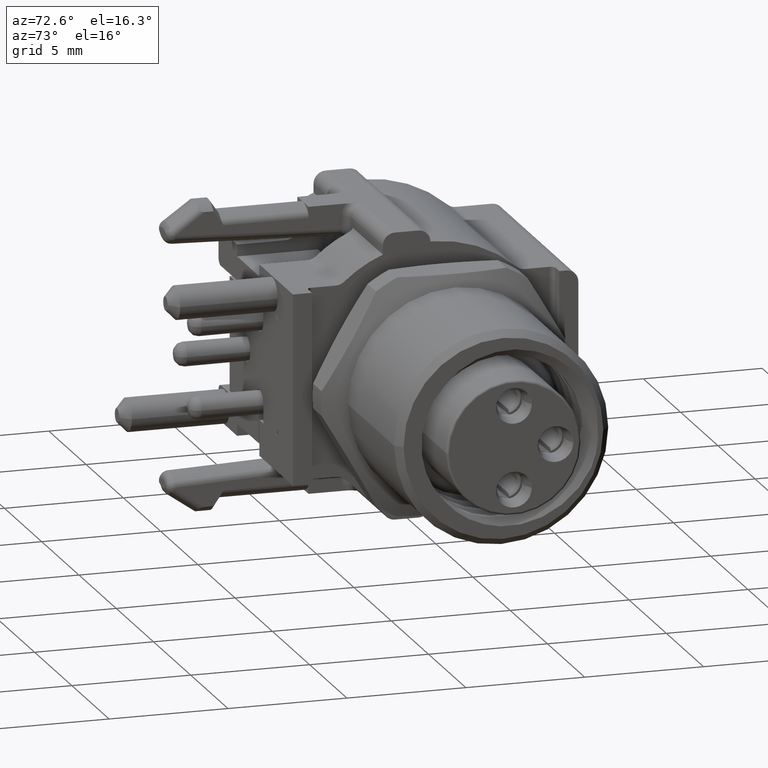
[diagram: clean part render]
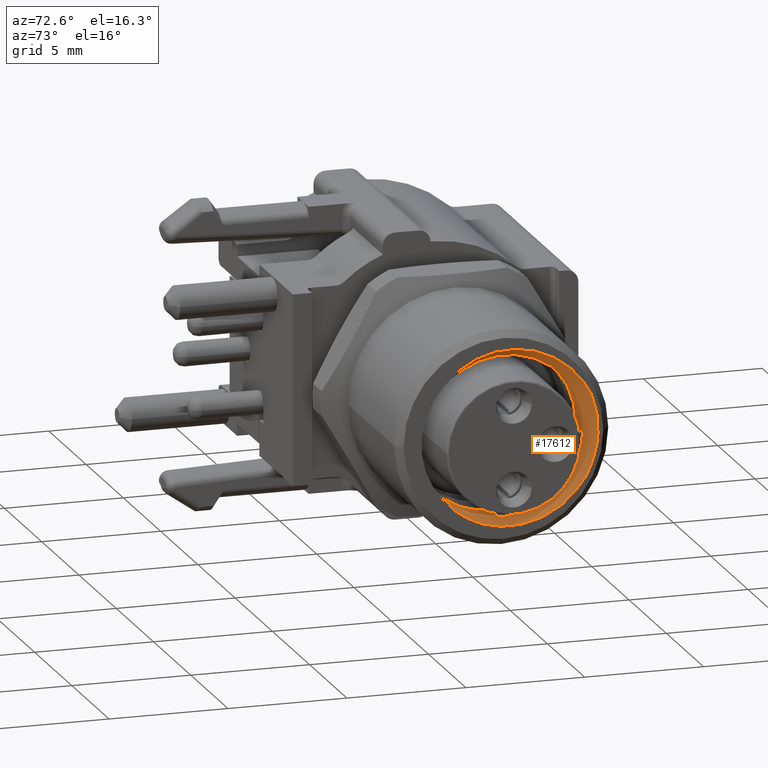
[diagram: same view with one face highlighted and labeled with its STEP entity id]
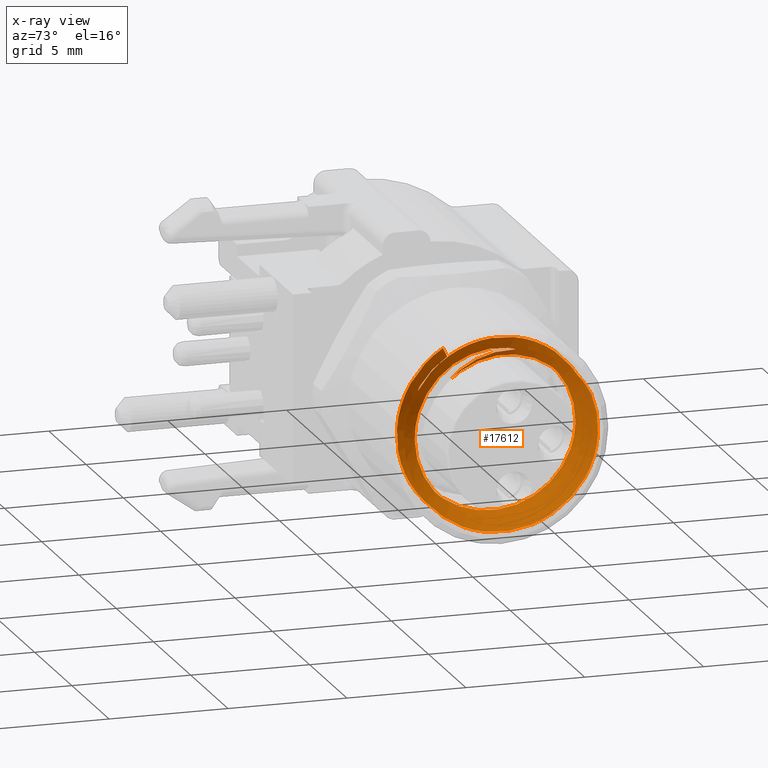
[diagram: x-ray of the same camera — body ghosted, the highlighted face saturated]
A machine part, auxiliary view. The second image highlights one B-rep face of the part: STEP entity #17612.
The next image is the same camera in x-ray: the body ghosted, the highlighted face saturated — about 0% of this face is hidden behind the body in this view.
In plain terms, the highlighted face is a freeform B-spline surface patch.
Its self-contained STEP definition (entity closure, byte-faithful):
#420=CARTESIAN_POINT('',(2.901902898612E-1,-7.873792157928E-2,
1.363832271779E-1));
#2312=CARTESIAN_POINT('',(3.582677165354E-1,-9.628549667288E-2,
9.628885492937E-2));
#2313=CARTESIAN_POINT('',(3.582677165354E-1,-9.335646168398E-2,
9.973104853174E-2));
#2314=CARTESIAN_POINT('',(3.582677165354E-1,-8.714770019653E-2,
1.063155538983E-1));
#2315=CARTESIAN_POINT('',(3.582677165354E-1,-7.673052463236E-2,
1.153721922043E-1));
#2316=CARTESIAN_POINT('',(3.582677165354E-1,-6.538318189849E-2,
1.233854435632E-1));
#2317=CARTESIAN_POINT('',(3.582677165354E-1,-5.322603190747E-2,
1.302635108978E-1));
#2318=CARTESIAN_POINT('',(3.582677165354E-1,-4.037845984877E-2,
1.359239822645E-1));
#2319=CARTESIAN_POINT('',(3.582677165354E-1,-2.695002373268E-2,
1.403055079545E-1));
#2320=CARTESIAN_POINT('',(3.582677165354E-1,-1.306804279630E-2,
1.433496320949E-1));
#2321=CARTESIAN_POINT('',(3.582677165354E-1,1.117849307072E-3,
1.450106536806E-1));
#2322=CARTESIAN_POINT('',(3.582677165354E-1,1.547825392502E-2,
1.452622318077E-1));
#2323=CARTESIAN_POINT('',(3.582677165354E-1,2.988155475938E-2,
1.440867318188E-1));
#2324=CARTESIAN_POINT('',(3.582677165354E-1,4.416826174331E-2,
1.414839981091E-1));
#2325=CARTESIAN_POINT('',(3.582677165354E-1,5.820438189211E-2,
1.374673462904E-1));
#2326=CARTESIAN_POINT('',(3.582677165354E-1,7.185379645785E-2,
1.320616248558E-1));
#2327=CARTESIAN_POINT('',(3.582677165354E-1,8.497567794215E-2,
1.253085235424E-1));
#2328=CARTESIAN_POINT('',(3.582677165354E-1,9.743639734452E-2,
1.172634660471E-1));
#2329=CARTESIAN_POINT('',(3.582677165354E-1,1.091121644049E-1,
1.079921880593E-1));
#2330=CARTESIAN_POINT('',(3.582677165354E-1,1.198840135461E-1,
9.757259309635E-2));
#2331=CARTESIAN_POINT('',(3.582677165354E-1,1.296392604606E-1,
8.609824294709E-2));
#2332=CARTESIAN_POINT('',(3.582677165354E-1,1.382824224945E-1,
7.365661226221E-2));
#2333=CARTESIAN_POINT('',(3.582677165354E-1,1.432252543499E-1,
6.482441370457E-2));
#2334=CARTESIAN_POINT('',(3.582677165354E-1,1.454938218841E-1,
6.026269777939E-2));
#2691=DIRECTION('',(-4.999998858543E-1,4.329976155465E-1,-7.500087859997E-1));
#2692=VECTOR('',#2691,2.461692365926E-2);
#2693=CARTESIAN_POINT('',(2.901902898612E-1,-7.873792157928E-2,
1.363832271779E-1));
#2694=LINE('',#2693,#2692);
#2695=CARTESIAN_POINT('',(2.901902898612E-1,-7.873792157928E-2,
1.363832271779E-1));
#2696=CARTESIAN_POINT('',(2.903966399602E-1,-8.322929567072E-2,
1.337902289896E-1));
#2697=CARTESIAN_POINT('',(2.908093096770E-1,-9.195483902566E-2,
1.281603452079E-1));
#2698=CARTESIAN_POINT('',(2.914278825164E-1,-1.041386533408E-1,
1.184734177871E-1));
#2699=CARTESIAN_POINT('',(2.920470444950E-1,-1.153186201265E-1,
1.076220746493E-1));
#2700=CARTESIAN_POINT('',(2.926659125675E-1,-1.253684587009E-1,
9.572612249592E-2));
#2701=CARTESIAN_POINT('',(2.932845241896E-1,-1.341935732041E-1,
8.290312046370E-2));
#2702=CARTESIAN_POINT('',(2.939037640676E-1,-1.417185826379E-1,
6.925838884729E-2));
#2703=CARTESIAN_POINT('',(2.945225076980E-1,-1.478556972868E-1,
5.494925762315E-2));
#2704=CARTESIAN_POINT('',(2.951411944481E-1,-1.525527479596E-1,
4.010646249449E-2));
#2705=CARTESIAN_POINT('',(2.957604513111E-1,-1.557655486203E-1,
2.485865243309E-2));
#2706=CARTESIAN_POINT('',(2.963791020819E-1,-1.574569225565E-1,
9.383448767509E-3));
#2707=CARTESIAN_POINT('',(2.969978950718E-1,-1.576153966822E-1,
-6.186682072065E-3));
#2708=CARTESIAN_POINT('',(2.976171094177E-1,-1.562358267798E-1,
-2.170703060020E-2));
#2709=CARTESIAN_POINT('',(2.982356984961E-1,-1.533353665859E-1,
-3.700022241780E-2));
#2710=CARTESIAN_POINT('',(2.988546290868E-1,-1.489395534277E-1,
-5.194139916229E-2));
#2711=CARTESIAN_POINT('',(2.994737408316E-1,-1.430890506271E-1,
-6.638008124547E-2));
#2712=CARTESIAN_POINT('',(3.000923014630E-1,-1.358501175644E-1,
-8.015941430797E-2));
#2713=CARTESIAN_POINT('',(3.007113932840E-1,-1.272807849623E-1,
-9.316921212081E-2));
#2714=CARTESIAN_POINT('',(3.013303461889E-1,-1.174716306699E-1,
-1.052671423575E-1));
#2715=CARTESIAN_POINT('',(3.019489289729E-1,-1.065245534403E-1,
-1.163328987458E-1));
#2716=CARTESIAN_POINT('',(3.025681323924E-1,-9.452760419795E-2,
-1.262751854430E-1));
#2717=CARTESIAN_POINT('',(3.031869431056E-1,-8.161635377681E-2,
-1.349796435149E-1));
#2718=CARTESIAN_POINT('',(3.038055831582E-1,-6.791407655376E-2,
-1.423675986032E-1));
#2719=CARTESIAN_POINT('',(3.044248375914E-1,-5.353560789332E-2,
-1.483738896115E-1));
#2720=CARTESIAN_POINT('',(3.050435376064E-1,-3.864806625045E-2,
-1.529282662760E-1));
#2721=CARTESIAN_POINT('',(3.056622660660E-1,-2.338354572024E-2,
-1.559938720972E-1));
#2722=CARTESIAN_POINT('',(3.062815119931E-1,-7.878082737879E-3,
-1.575397811574E-1));
#2723=CARTESIAN_POINT('',(3.069001325212E-1,7.688513352065E-3,
-1.575488010098E-1));
#2724=CARTESIAN_POINT('',(3.075189805898E-1,2.318594709676E-2,
-1.560234149962E-1));
#2725=CARTESIAN_POINT('',(3.081381585194E-1,3.846536449982E-2,
-1.529746031106E-1));
#2726=CARTESIAN_POINT('',(3.087567305950E-1,5.335512845308E-2,
-1.484385223895E-1));
#2727=CARTESIAN_POINT('',(3.093757301542E-1,6.773527229307E-2,
-1.424529188646E-1));
#2728=CARTESIAN_POINT('',(3.099947780526E-1,8.145561001368E-2,
-1.350768628802E-1));
#2729=CARTESIAN_POINT('',(3.106133421990E-1,9.437201399072E-2,
-1.263911607624E-1));
#2730=CARTESIAN_POINT('',(3.112324897164E-1,1.063804703545E-1,
-1.164649853151E-1));
#2731=CARTESIAN_POINT('',(3.118513777050E-1,1.173461983131E-1,
-1.054068952490E-1));
#2732=CARTESIAN_POINT('',(3.124699812522E-1,1.271644166010E-1,
-9.332764471058E-2));
#2733=CARTESIAN_POINT('',(3.130892138141E-1,1.357521847559E-1,
-8.032576153073E-2));
#2734=CARTESIAN_POINT('',(3.137079732661E-1,1.430096385879E-1,
-6.655052388722E-2));
#2735=CARTESIAN_POINT('',(3.143266473846E-1,1.488737905966E-1,
-5.212926595996E-2));
#2736=CARTESIAN_POINT('',(3.149459054633E-1,1.532908405009E-1,
-3.718575821037E-2));
#2737=CARTESIAN_POINT('',(3.155645675893E-1,1.562094002261E-1,
-2.189414038108E-2));
#2738=CARTESIAN_POINT('',(3.161833434921E-1,1.576074185712E-1,
-6.386521501591E-3));
#2739=CARTESIAN_POINT('',(3.168025675521E-1,1.574683842287E-1,
9.194644214869E-3));
#2740=CARTESIAN_POINT('',(3.174211635516E-1,1.557951127227E-1,
2.467043049441E-2));
#2741=CARTESIAN_POINT('',(3.180400725036E-1,1.526033862991E-1,
3.991371947120E-2));
#2742=CARTESIAN_POINT('',(3.186592028138E-1,1.479213323252E-1,
5.477295413834E-2));
#2743=CARTESIAN_POINT('',(3.192777646169E-1,1.418027993762E-1,
6.908506928248E-2));
#2744=CARTESIAN_POINT('',(3.198968351558E-1,1.342971437356E-1,
8.273559121351E-2));
#2745=CARTESIAN_POINT('',(3.205158110501E-1,1.254823849970E-1,
9.557683216468E-2));
#2746=CARTESIAN_POINT('',(3.211343881666E-1,1.154514787450E-1,
1.074791829946E-1));
#2747=CARTESIAN_POINT('',(3.217535794472E-1,1.042847390361E-1,
1.183451966609E-1));
#2748=CARTESIAN_POINT('',(3.223724085200E-1,9.210741416552E-2,
1.280506139964E-1));
#2749=CARTESIAN_POINT('',(3.229910384918E-1,7.903727964153E-2,
1.365062613405E-1));
#2750=CARTESIAN_POINT('',(3.236102892795E-1,6.518295653045E-2,
1.436386356192E-1));
#2751=CARTESIAN_POINT('',(3.242290031983E-1,5.070511316303E-2,
1.493643832602E-1));
#2752=CARTESIAN_POINT('',(3.248477171171E-1,3.573359381965E-2,
1.536358868797E-1));
#2753=CARTESIAN_POINT('',(3.254669679048E-1,2.040039716431E-2,
1.564118753606E-1));
#2754=CARTESIAN_POINT('',(3.260855978766E-1,4.883731352458E-3,
1.576606629987E-1));
#2755=CARTESIAN_POINT('',(3.267044269494E-1,-1.068548315058E-2,
1.573744350852E-1));
#2756=CARTESIAN_POINT('',(3.273236182300E-1,-2.615952329814E-2,
1.555522358001E-1));
#2757=CARTESIAN_POINT('',(3.279421953465E-1,-4.136337801477E-2,
1.522163944862E-1));
#2758=CARTESIAN_POINT('',(3.285611712408E-1,-5.617400694078E-2,
1.473953249367E-1));
#2759=CARTESIAN_POINT('',(3.291802417797E-1,-7.043876088715E-2,
1.411352602059E-1));
#2760=CARTESIAN_POINT('',(3.297988035828E-1,-8.400583384304E-2,
1.335058685685E-1));
#2761=CARTESIAN_POINT('',(3.304179338930E-1,-9.676637967191E-2,
1.245679183305E-1));
#2762=CARTESIAN_POINT('',(3.310368428450E-1,-1.085784064401E-1,
1.144179922214E-1));
#2763=CARTESIAN_POINT('',(3.316554388445E-1,-1.193273337583E-1,
1.031592018773E-1));
#2764=CARTESIAN_POINT('',(3.322746629045E-1,-1.289232532767E-1,
9.088278610447E-2));
#2765=CARTESIAN_POINT('',(3.328934388073E-1,-1.372550032671E-1,
7.772897902429E-2));
#2766=CARTESIAN_POINT('',(3.335121009333E-1,-1.442489583557E-1,
6.382084619038E-2));
#2767=CARTESIAN_POINT('',(3.341313590120E-1,-1.498421861692E-1,
4.927661859504E-2));
#2768=CARTESIAN_POINT('',(3.347500331305E-1,-1.539694404816E-1,
3.426573151843E-2));
#2769=CARTESIAN_POINT('',(3.353687925825E-1,-1.565980529393E-1,
1.891912913205E-2));
#2770=CARTESIAN_POINT('',(3.359880251444E-1,-1.577004741688E-1,
3.376175888289E-3));
#2771=CARTESIAN_POINT('',(3.366066286916E-1,-1.572650510720E-1,
-1.218390478776E-2));
#2772=CARTESIAN_POINT('',(3.372255166802E-1,-1.552976005704E-1,
-2.763245436679E-2));
#2773=CARTESIAN_POINT('',(3.378446641976E-1,-1.518138233948E-1,
-4.281781836774E-2));
#2774=CARTESIAN_POINT('',(3.384632283440E-1,-1.468545564538E-1,
-5.757182068523E-2));
#2775=CARTESIAN_POINT('',(3.390822762424E-1,-1.404602058790E-1,
-7.177626188438E-2));
#2776=CARTESIAN_POINT('',(3.397012758016E-1,-1.326959190377E-1,
-8.527929251687E-2));
#2777=CARTESIAN_POINT('',(3.403198478772E-1,-1.236448822075E-1,
-9.794261874620E-2));
#2778=CARTESIAN_POINT('',(3.409390258067E-1,-1.133792896291E-1,
-1.096632611819E-1));
#2779=CARTESIAN_POINT('',(3.415578738754E-1,-1.020132947900E-1,
-1.203080447156E-1));
#2780=CARTESIAN_POINT('',(3.421764944035E-1,-8.965830404418E-2,
-1.297776380995E-1));
#2781=CARTESIAN_POINT('',(3.427957403306E-1,-7.641617329017E-2,
-1.379907489726E-1));
#2782=CARTESIAN_POINT('',(3.434144687902E-1,-6.244001782155E-2,
-1.448515509946E-1));
#2783=CARTESIAN_POINT('',(3.440331688052E-1,-4.785658718907E-2,
-1.503017614453E-1));
#2784=CARTESIAN_POINT('',(3.446524232384E-1,-3.279311381779E-2,
-1.542902025805E-1));
#2785=CARTESIAN_POINT('',(3.452710632910E-1,-1.742494583129E-2,
-1.567708666494E-1));
#2786=CARTESIAN_POINT('',(3.458898740042E-1,-1.882855213198E-3,
-1.577255377874E-1));
#2787=CARTESIAN_POINT('',(3.465090774237E-1,1.368746439817E-2,
-1.571415830855E-1));
#2788=CARTESIAN_POINT('',(3.471276602077E-1,2.910883985128E-2,
-1.550271934690E-1));
#2789=CARTESIAN_POINT('',(3.477466131126E-1,4.425583764477E-2,
-1.514011926710E-1));
#2790=CARTESIAN_POINT('',(3.483657049336E-1,5.897437714634E-2,
-1.462969889802E-1));
#2791=CARTESIAN_POINT('',(3.489842655650E-1,7.310594978762E-2,
-1.397723567133E-1));
#2792=CARTESIAN_POINT('',(3.496033773098E-1,8.653743786283E-2,
-1.318793818999E-1));
#2793=CARTESIAN_POINT('',(3.502223079005E-1,9.912078462353E-2,
-1.227021644496E-1));
#2794=CARTESIAN_POINT('',(3.508408969789E-1,1.107321204085E-1,
-1.123353295133E-1));
#2795=CARTESIAN_POINT('',(3.514601113248E-1,1.212751733944E-1,
-1.008623845868E-1));
#2796=CARTESIAN_POINT('',(3.520789043147E-1,1.306283516327E-1,
-8.841360371264E-2));
#2797=CARTESIAN_POINT('',(3.526975550855E-1,1.387076388770E-1,
-7.510692148501E-2));
#2798=CARTESIAN_POINT('',(3.533168119485E-1,1.454414932016E-1,
-6.105441260978E-2));
#2799=CARTESIAN_POINT('',(3.539354986986E-1,1.507512744872E-1,
-4.641962272562E-2));
#2800=CARTESIAN_POINT('',(3.545542423290E-1,1.545937171028E-1,
-3.133151325658E-2));
#2801=CARTESIAN_POINT('',(3.551734822070E-1,1.569306183449E-1,
-1.592556114556E-2));
#2802=CARTESIAN_POINT('',(3.557920938291E-1,1.577358441978E-1,
-3.800267887670E-4));
#2803=CARTESIAN_POINT('',(3.564109619016E-1,1.570050792412E-1,
1.517564470385E-2));
#2804=CARTESIAN_POINT('',(3.570301238802E-1,1.547418009909E-1,
3.059060097311E-2));
#2805=CARTESIAN_POINT('',(3.576486967196E-1,1.509732552988E-1,
4.569291726863E-2));
#2806=CARTESIAN_POINT('',(3.580613664364E-1,1.474783937782E-1,
5.547129347259E-2));
#2807=CARTESIAN_POINT('',(3.582677165354E-1,1.454938218841E-1,
6.026269777939E-2));
#2848=CARTESIAN_POINT('',(2.778818308415E-1,-6.807885233273E-2,
1.179203181492E-1));
#2849=CARTESIAN_POINT('',(2.780807136479E-1,-7.182175850652E-2,
1.157594228565E-1));
#2850=CARTESIAN_POINT('',(2.784784828211E-1,-7.910129073050E-2,
1.110809240991E-1));
#2851=CARTESIAN_POINT('',(2.790746865865E-1,-8.929703398265E-2,
1.030634024840E-1));
#2852=CARTESIAN_POINT('',(2.796715267265E-1,-9.869446314972E-2,
9.410353902792E-2));
#2853=CARTESIAN_POINT('',(2.802679468560E-1,-1.071910671728E-1,
8.429731522895E-2));
#2854=CARTESIAN_POINT('',(2.808642467662E-1,-1.147164050824E-1,
7.373059549699E-2));
#2855=CARTESIAN_POINT('',(2.814611189117E-1,-1.212090349411E-1,
6.248536634860E-2));
#2856=CARTESIAN_POINT('',(2.820574052510E-1,-1.265976471809E-1,
5.068530185602E-2));
#2857=CARTESIAN_POINT('',(2.826538452005E-1,-1.308422597874E-1,
3.842362934064E-2));
#2858=CARTESIAN_POINT('',(2.832506574783E-1,-1.339032331108E-1,
2.580594450287E-2));
#2859=CARTESIAN_POINT('',(2.838468692079E-1,-1.357491528844E-1,
1.296735618432E-2));
#2860=CARTESIAN_POINT('',(2.842446192811E-1,-1.361613466838E-1,
4.324131374569E-3));
#2861=CARTESIAN_POINT('',(2.844435068851E-1,-1.361614173047E-1,
2.224905238882E-6));
#2927=CARTESIAN_POINT('',(2.844435068851E-1,-1.361614173047E-1,
2.224905238882E-6));
#2928=CARTESIAN_POINT('',(2.846552308371E-1,-1.361614924834E-1,
-4.598620496975E-3));
#2929=CARTESIAN_POINT('',(2.850786467404E-1,-1.356946380904E-1,
-1.379957985799E-2));
#2930=CARTESIAN_POINT('',(2.857133085011E-1,-1.336039690871E-1,
-2.744957787679E-2));
#2931=CARTESIAN_POINT('',(2.863486064419E-1,-1.301397736183E-1,
-4.083146395134E-2));
#2932=CARTESIAN_POINT('',(2.869835836726E-1,-1.253410027305E-1,
-5.378733343699E-2));
#2933=CARTESIAN_POINT('',(2.876182884850E-1,-1.192597158732E-1,
-6.618639937670E-2));
#2934=CARTESIAN_POINT('',(2.882536258427E-1,-1.119478090701E-1,
-7.791821199161E-2));
#2935=CARTESIAN_POINT('',(2.888885147864E-1,-1.034918283304E-1,
-8.884185182605E-2));
#2936=CARTESIAN_POINT('',(2.895232626742E-1,-9.397714183540E-2,
-9.885263076381E-2));
#2937=CARTESIAN_POINT('',(2.901586940928E-1,-8.348682508380E-2,
-1.078586899832E-1));
#2938=CARTESIAN_POINT('',(2.907934512081E-1,-7.215088692804E-2,
-1.157483681064E-1));
#2939=CARTESIAN_POINT('',(2.914283477529E-1,-6.007288668012E-2,
-1.224532923397E-1));
#2940=CARTESIAN_POINT('',(2.920636852597E-1,-4.736936244937E-2,
-1.279048951778E-1));
#2941=CARTESIAN_POINT('',(2.926983888921E-1,-3.419260584151E-2,
-1.320390503059E-1));
#2942=CARTESIAN_POINT('',(2.933333841808E-1,-2.065920316844E-2,
-1.348212656074E-1));
#2943=CARTESIAN_POINT('',(2.939686992425E-1,-6.906738551927E-3,
-1.362196321227E-1));
#2944=CARTESIAN_POINT('',(2.946033302052E-1,6.901769958883E-3,
-1.362198520086E-1));
#2945=CARTESIAN_POINT('',(2.952386045714E-1,2.065341321692E-2,
-1.348221591102E-1));
#2946=CARTESIAN_POINT('',(2.958736469499E-1,3.418793067534E-2,
-1.320402820637E-1));
#2947=CARTESIAN_POINT('',(2.965083331297E-1,4.736446545498E-2,
-1.279066839827E-1));
#2948=CARTESIAN_POINT('',(2.971436632214E-1,6.006806847532E-2,
-1.224556755201E-1));
#2949=CARTESIAN_POINT('',(2.977785918767E-1,7.214692184701E-2,
-1.157508478603E-1));
#2950=CARTESIAN_POINT('',(2.984133339150E-1,8.348286305331E-2,
-1.078617465630E-1));
#2951=CARTESIAN_POINT('',(2.990487746962E-1,9.397367075256E-2,
-9.885594763001E-2));
#2952=CARTESIAN_POINT('',(2.996835308414E-1,1.034888163136E-1,
-8.884535598825E-2));
#2953=CARTESIAN_POINT('',(3.003184096323E-1,1.119450387823E-1,
-7.792218325394E-2));
#2954=CARTESIAN_POINT('',(3.009537500638E-1,1.192574050931E-1,
-6.619057800523E-2));
#2955=CARTESIAN_POINT('',(3.015884621869E-1,1.253391809906E-1,
-5.379157487558E-2));
#2956=CARTESIAN_POINT('',(3.022234341910E-1,1.301383605874E-1,
-4.083597734760E-2));
#2957=CARTESIAN_POINT('',(3.028587446764E-1,1.336030775214E-1,
-2.745394470232E-2));
#2958=CARTESIAN_POINT('',(3.034934044684E-1,1.356941808314E-1,
-1.380405573711E-2));
#2959=CARTESIAN_POINT('',(3.039168218830E-1,1.361613421258E-1,
-4.603079434927E-3));
#2960=CARTESIAN_POINT('',(3.041285462551E-1,1.361614173047E-1,
-2.224905239561E-6));
#2981=CARTESIAN_POINT('',(3.041285462551E-1,1.361614173047E-1,
-2.224905239561E-6));
#2982=CARTESIAN_POINT('',(3.043402693039E-1,1.361614924831E-1,
4.598600868054E-3));
#2983=CARTESIAN_POINT('',(3.047636810299E-1,1.356946570011E-1,
1.379947175170E-2));
#2984=CARTESIAN_POINT('',(3.053983499903E-1,1.336039403093E-1,
2.744961779291E-2));
#2985=CARTESIAN_POINT('',(3.060336068644E-1,1.301400253065E-1,
4.083065565814E-2));
#2986=CARTESIAN_POINT('',(3.066686191053E-1,1.253410500017E-1,
5.378725886425E-2));
#2987=CARTESIAN_POINT('',(3.073033118625E-1,1.192598808552E-1,
6.618609433374E-2));
#2988=CARTESIAN_POINT('',(3.079386635159E-1,1.119478358555E-1,
7.791818423626E-2));
#2989=CARTESIAN_POINT('',(3.085735483606E-1,1.034919109328E-1,
8.884175822982E-2));
#2990=CARTESIAN_POINT('',(3.092082984691E-1,9.397718740028E-2,
9.885256372546E-2));
#2991=CARTESIAN_POINT('',(3.098436983260E-1,8.348743011536E-2,
1.078582247720E-1));
#2992=CARTESIAN_POINT('',(3.104784768576E-1,7.215113357748E-2,
1.157481964455E-1));
#2993=CARTESIAN_POINT('',(3.111133157697E-1,6.007427092413E-2,
1.224525892125E-1));
#2994=CARTESIAN_POINT('',(3.117486815029E-1,4.737025607862E-2,
1.279046036930E-1));
#2995=CARTESIAN_POINT('',(3.123834043028E-1,3.419310461939E-2,
1.320388980552E-1));
#2996=CARTESIAN_POINT('',(3.130183466048E-1,2.066085642023E-2,
1.348209899319E-1));
#2997=CARTESIAN_POINT('',(3.136536868841E-1,6.907863620243E-3,
1.362196249375E-1));
#2998=CARTESIAN_POINT('',(3.142883412840E-1,-6.901149024432E-3,
1.362198127884E-1));
#2999=CARTESIAN_POINT('',(3.149234797082E-1,-2.064987913150E-2,
1.348226851717E-1));
#3000=CARTESIAN_POINT('',(3.155586291332E-1,-3.418674105763E-2,
1.320406596818E-1));
#3001=CARTESIAN_POINT('',(3.161932891218E-1,-4.736273696984E-2,
1.279072419324E-1));
#3002=CARTESIAN_POINT('',(3.168285512551E-1,-6.006512643694E-2,
1.224571564658E-1));
#3003=CARTESIAN_POINT('',(3.174635919221E-1,-7.214621441136E-2,
1.157513332804E-1));
#3004=CARTESIAN_POINT('',(3.180982802147E-1,-8.348122675788E-2,
1.078629412479E-1));
#3005=CARTESIAN_POINT('',(3.187337101232E-1,-9.397206399418E-2,
9.885754061800E-2));
#3006=CARTESIAN_POINT('',(3.193685317385E-1,-1.034882593755E-1,
8.884598346467E-2));
#3007=CARTESIAN_POINT('',(3.200033314331E-1,-1.119435594903E-1,
7.792426996005E-2));
#3008=CARTESIAN_POINT('',(3.206387302643E-1,-1.192568287912E-1,
6.619173260613E-2));
#3009=CARTESIAN_POINT('',(3.212734705988E-1,-1.253389031545E-1,
5.379218861283E-2));
#3010=CARTESIAN_POINT('',(3.219084221689E-1,-1.301380394739E-1,
4.083704843716E-2));
#3011=CARTESIAN_POINT('',(3.225437829558E-1,-1.336030939090E-1,
2.745397327628E-2));
#3012=CARTESIAN_POINT('',(3.231784351083E-1,-1.356941543160E-1,
1.380424294468E-2));
#3013=CARTESIAN_POINT('',(3.236018591831E-1,-1.361613421250E-1,
4.603124415918E-3));
#3014=CARTESIAN_POINT('',(3.238135856251E-1,-1.361614173047E-1,
2.224905239022E-6));
#3080=CARTESIAN_POINT('',(3.238135856251E-1,-1.361614173047E-1,
2.224905239022E-6));
#3081=CARTESIAN_POINT('',(3.240253086756E-1,-1.361614924831E-1,
-4.598600905325E-3));
#3082=CARTESIAN_POINT('',(3.244487241215E-1,-1.356946389776E-1,
-1.379955012824E-2));
#3083=CARTESIAN_POINT('',(3.250833839061E-1,-1.336039867423E-1,
-2.744950715355E-2));
#3084=CARTESIAN_POINT('',(3.257186945629E-1,-1.301397253708E-1,
-4.083166336812E-2));
#3085=CARTESIAN_POINT('',(3.263536848094E-1,-1.253408099720E-1,
-5.378777972854E-2));
#3086=CARTESIAN_POINT('',(3.269883987725E-1,-1.192594167300E-1,
-6.618702110710E-2));
#3087=CARTESIAN_POINT('',(3.276237939611E-1,-1.119466890181E-1,
-7.791980016479E-2));
#3088=CARTESIAN_POINT('',(3.282586168300E-1,-1.034914886729E-1,
-8.884223216205E-2));
#3089=CARTESIAN_POINT('',(3.288934133310E-1,-9.397601811631E-2,
-9.885371768494E-2));
#3090=CARTESIAN_POINT('',(3.295288001019E-1,-8.348633250830E-2,
-1.078590261051E-1));
#3091=CARTESIAN_POINT('',(3.301635472572E-1,-7.215057336702E-2,
-1.157485743819E-1));
#3092=CARTESIAN_POINT('',(3.307984619224E-1,-6.007220047504E-2,
-1.224536477053E-1));
#3093=CARTESIAN_POINT('',(3.314338070252E-1,-4.736847892115E-2,
-1.279052011834E-1));
#3094=CARTESIAN_POINT('',(3.320684857795E-1,-3.419222735260E-2,
-1.320391741506E-1));
#3095=CARTESIAN_POINT('',(3.327035366437E-1,-2.065761763626E-2,
-1.348214956142E-1));
#3096=CARTESIAN_POINT('',(3.333387731874E-1,-6.906838178420E-3,
-1.362196027265E-1));
#3097=CARTESIAN_POINT('',(3.339734263293E-1,6.902143911292E-3,
-1.362198187600E-1));
#3098=CARTESIAN_POINT('',(3.346086334460E-1,2.065233986648E-2,
-1.348223051384E-1));
#3099=CARTESIAN_POINT('',(3.352437126423E-1,3.418765885841E-2,
-1.320403732224E-1));
#3100=CARTESIAN_POINT('',(3.358783835204E-1,4.736388276841E-2,
-1.279068835846E-1));
#3101=CARTESIAN_POINT('',(3.365137142202E-1,6.006752902834E-2,
-1.224559495094E-1));
#3102=CARTESIAN_POINT('',(3.371486549706E-1,7.214663907725E-2,
-1.157510352426E-1));
#3103=CARTESIAN_POINT('',(3.377833893502E-1,8.348243804843E-2,
-1.078620291597E-1));
#3104=CARTESIAN_POINT('',(3.384187807085E-1,9.397253298743E-2,
-9.885704518921E-2));
#3105=CARTESIAN_POINT('',(3.390535861348E-1,1.034884741773E-1,
-8.884573847272E-2));
#3106=CARTESIAN_POINT('',(3.396883960887E-1,1.119438818390E-1,
-7.792382278471E-2));
#3107=CARTESIAN_POINT('',(3.403237968163E-1,1.192571042252E-1,
-6.619120964074E-2));
#3108=CARTESIAN_POINT('',(3.409585194805E-1,1.253389926785E-1,
-5.379200069986E-2));
#3109=CARTESIAN_POINT('',(3.415934971711E-1,1.301382703260E-1,
-4.083630895586E-2));
#3110=CARTESIAN_POINT('',(3.422288264147E-1,1.336030967341E-1,
-2.745388198739E-2));
#3111=CARTESIAN_POINT('',(3.428634831838E-1,1.356941776566E-1,
-1.380405569298E-2));
#3112=CARTESIAN_POINT('',(3.432869011377E-1,1.361613421259E-1,
-4.603068251183E-3));
#3113=CARTESIAN_POINT('',(3.434986249952E-1,1.361614173047E-1,
-2.224905239393E-6));
#3163=CARTESIAN_POINT('',(3.434986249952E-1,1.361614173047E-1,
-2.224905239290E-6));
#3164=CARTESIAN_POINT('',(3.437127299445E-1,1.361614933288E-1,
4.650360512209E-3));
#3165=CARTESIAN_POINT('',(3.441409077960E-1,1.356840684790E-1,
1.395479754684E-2));
#3166=CARTESIAN_POINT('',(3.447827064213E-1,1.335462333741E-1,
2.775505766471E-2));
#3167=CARTESIAN_POINT('',(3.454251529251E-1,1.300044292363E-1,
4.127788294640E-2));
#3168=CARTESIAN_POINT('',(3.460672991485E-1,1.250990653058E-1,
5.436092625662E-2));
#3169=CARTESIAN_POINT('',(3.467091437520E-1,1.188848982400E-1,
6.686809704878E-2));
#3170=CARTESIAN_POINT('',(3.473516385136E-1,1.114161054345E-1,
7.868578611258E-2));
#3171=CARTESIAN_POINT('',(3.479936542824E-1,1.027832763486E-1,
8.966865655008E-2));
#3172=CARTESIAN_POINT('',(3.486355296396E-1,9.307524607438E-2,
9.970947558590E-2));
#3173=CARTESIAN_POINT('',(3.492780809844E-1,8.237936350985E-2,
1.087135380286E-1));
#3174=CARTESIAN_POINT('',(3.499200200156E-1,7.082908063626E-2,
1.165680661269E-1));
#3175=CARTESIAN_POINT('',(3.505619989342E-1,5.853571769101E-2,
1.232013160079E-1));
#3176=CARTESIAN_POINT('',(3.512045086468E-1,4.561729184579E-2,
1.285458516937E-1));
#3177=CARTESIAN_POINT('',(3.518463821473E-1,3.223304618079E-2,
1.325364221072E-1));
#3178=CARTESIAN_POINT('',(3.524884020445E-1,1.850788432499E-2,
1.351386632773E-1));
#3179=CARTESIAN_POINT('',(3.531308857894E-1,4.578385563398E-3,
1.363231405214E-1));
#3180=CARTESIAN_POINT('',(3.537727292897E-1,-9.385269885874E-3,
1.360764560038E-1));
#3181=CARTESIAN_POINT('',(3.544148538401E-1,-2.325662637055E-2,
1.344028903281E-1));
#3182=CARTESIAN_POINT('',(3.550572735227E-1,-3.689004782569E-2,
1.313166649560E-1));
#3183=CARTESIAN_POINT('',(3.556990916907E-1,-5.012384415411E-2,
1.268562030032E-1));
#3184=CARTESIAN_POINT('',(3.563412830023E-1,-6.283964945665E-2,
1.210627355938E-1));
#3185=CARTESIAN_POINT('',(3.569836294567E-1,-7.489847332406E-2,
1.139962562269E-1));
#3186=CARTESIAN_POINT('',(3.576254447685E-1,-8.616200389729E-2,
1.057403266463E-1));
#3187=CARTESIAN_POINT('',(3.580536132209E-1,-9.307356464596E-2,
9.949316233771E-2));
#3188=CARTESIAN_POINT('',(3.582677165354E-1,-9.636067784334E-2,
9.620057865177E-2));
#13791=VERTEX_POINT('',#420);
#13796=CARTESIAN_POINT('',(2.778818308415E-1,-6.807885233273E-2,
1.179203181492E-1));
#13797=VERTEX_POINT('',#13796);
#13799=VERTEX_POINT('',#2807);
#13806=VERTEX_POINT('',#2927);
#13807=VERTEX_POINT('',#2960);
#13808=VERTEX_POINT('',#3080);
#13809=VERTEX_POINT('',#3113);
#13811=VERTEX_POINT('',#2312);
#17456=CARTESIAN_POINT('',(2.888287413277E-1,-4.166224544878E-2,
1.523114447937E-1));
#17457=CARTESIAN_POINT('',(2.896995884633E-1,-6.283064627998E-2,
1.465211831861E-1));
#17458=CARTESIAN_POINT('',(2.914412827345E-1,-1.027054963779E-1,
1.259894916647E-1));
#17459=CARTESIAN_POINT('',(2.940538241413E-1,-1.449302659209E-1,
7.360252352614E-2));
#17460=CARTESIAN_POINT('',(2.966663655481E-1,-1.623203912582E-1,
8.605389763511E-3));
#17461=CARTESIAN_POINT('',(2.992789069550E-1,-1.518996234121E-1,
-5.786636419788E-2));
#17462=CARTESIAN_POINT('',(3.018914483618E-1,-1.154525389755E-1,
-1.144233784134E-1));
#17463=CARTESIAN_POINT('',(3.045039897686E-1,-5.922413594115E-2,
-1.513753712505E-1));
#17464=CARTESIAN_POINT('',(3.071165311754E-1,7.151606196085E-3,
-1.623910567533E-1));
#17465=CARTESIAN_POINT('',(3.097290725822E-1,7.230200514801E-2,
-1.455830377202E-1));
#17466=CARTESIAN_POINT('',(3.123416139891E-1,1.250643478695E-1,
-1.038311597341E-1));
#17467=CARTESIAN_POINT('',(3.149541553959E-1,1.563984561839E-1,
-4.428909268581E-2));
#17468=CARTESIAN_POINT('',(3.175666968027E-1,1.609356172661E-1,
2.284136439333E-2));
#17469=CARTESIAN_POINT('',(3.201792382095E-1,1.378984444127E-1,
8.605823527929E-2));
#17470=CARTESIAN_POINT('',(3.227917796163E-1,9.123407320101E-2,
1.345300885241E-1));
#17471=CARTESIAN_POINT('',(3.254043210231E-1,2.893786832817E-2,
1.599518696600E-1));
#17472=CARTESIAN_POINT('',(3.280168624300E-1,-3.831648352061E-2,
1.579678699031E-1));
#17473=CARTESIAN_POINT('',(3.306294038368E-1,-9.900577830461E-2,
1.289180231519E-1));
#17474=CARTESIAN_POINT('',(3.332419452436E-1,-1.427316535731E-1,
7.777966250502E-2));
#17475=CARTESIAN_POINT('',(3.358544866504E-1,-1.620022196750E-1,
1.331471559786E-2));
#17476=CARTESIAN_POINT('',(3.384670280572E-1,-1.535157026872E-1,
-5.343154367628E-2));
#17477=CARTESIAN_POINT('',(3.410795694641E-1,-1.187261626680E-1,
-1.110229666733E-1));
#17478=CARTESIAN_POINT('',(3.436921108709E-1,-6.359435839890E-2,
-1.495919730868E-1));
#17479=CARTESIAN_POINT('',(3.463046522777E-1,2.433555165881E-3,
-1.625302391461E-1));
#17480=CARTESIAN_POINT('',(3.489171936845E-1,6.804450901868E-2,
-1.476209525513E-1));
#17481=CARTESIAN_POINT('',(3.515297350913E-1,1.219968752770E-1,
-1.074186354545E-1));
#17482=CARTESIAN_POINT('',(3.541422764982E-1,1.550465804919E-1,
-4.881146035945E-2));
#17483=CARTESIAN_POINT('',(3.567548179050E-1,1.615309675352E-1,
1.815895994711E-2));
#17484=CARTESIAN_POINT('',(3.593673593118E-1,1.403390076520E-1,
8.201805419952E-2));
#17485=CARTESIAN_POINT('',(3.619799007186E-1,9.510171540860E-2,
1.318244113378E-1));
#17486=CARTESIAN_POINT('',(3.645924421254E-1,3.356981807453E-2,
1.590441116975E-1));
#17487=CARTESIAN_POINT('',(3.672049835323E-1,-3.371348566139E-2,
1.590141953848E-1));
#17488=CARTESIAN_POINT('',(3.698175249391E-1,-9.522177287961E-2,
1.317368018658E-1));
#17489=CARTESIAN_POINT('',(3.715592192103E-1,-1.253471622065E-1,
9.851008151962E-2));
#17490=CARTESIAN_POINT('',(3.724300663459E-1,-1.364034625407E-1,
7.955258837960E-2));
#17491=CARTESIAN_POINT('',(2.845618075688E-1,-3.971231686906E-2,
1.451827738346E-1));
#17492=CARTESIAN_POINT('',(2.854326547044E-1,-5.988996769811E-2,
1.396635153012E-1));
#17493=CARTESIAN_POINT('',(2.871743489756E-1,-9.789854513165E-2,
1.200927737155E-1));
#17494=CARTESIAN_POINT('',(2.897868903824E-1,-1.381470581379E-1,
7.015768605718E-2));
#17495=CARTESIAN_POINT('',(2.923994317892E-1,-1.547232690538E-1,
8.202629536385E-3));
#17496=CARTESIAN_POINT('',(2.950119731960E-1,-1.447902270329E-1,
-5.515803016214E-2));
#17497=CARTESIAN_POINT('',(2.976245146029E-1,-1.100489846801E-1,
-1.090679921794E-1));
#17498=CARTESIAN_POINT('',(3.002370560097E-1,-5.645225377213E-2,
-1.442905115775E-1));
#17499=CARTESIAN_POINT('',(3.028495974165E-1,6.816887767868E-3,
-1.547906271739E-1));
#17500=CARTESIAN_POINT('',(3.054621388233E-1,6.891803616865E-2,
-1.387692780940E-1));
#17501=CARTESIAN_POINT('',(3.080746802301E-1,1.192109296587E-1,
-9.897152378192E-2));
#17502=CARTESIAN_POINT('',(3.106872216369E-1,1.490784998001E-1,
-4.221621911244E-2));
#17503=CARTESIAN_POINT('',(3.132997630438E-1,1.534033069880E-1,
2.177231425572E-2));
#17504=CARTESIAN_POINT('',(3.159123044506E-1,1.314443487449E-1,
8.203042999218E-2));
#17505=CARTESIAN_POINT('',(3.185248458574E-1,8.696402186645E-2,
1.282336428665E-1));
#17506=CARTESIAN_POINT('',(3.211373872642E-1,2.758348197953E-2,
1.524656019691E-1));
#17507=CARTESIAN_POINT('',(3.237499286710E-1,-3.652314748012E-2,
1.505744598532E-1));
#17508=CARTESIAN_POINT('',(3.263624700779E-1,-9.437198589631E-2,
1.228842404050E-1));
#17509=CARTESIAN_POINT('',(3.289750114847E-1,-1.360513479982E-1,
7.413932134707E-2));
#17510=CARTESIAN_POINT('',(3.315875528915E-1,-1.544199889354E-1,
1.269154360615E-2));
#17511=CARTESIAN_POINT('',(3.342000942983E-1,-1.463306685422E-1,
-5.093077366375E-2));
#17512=CARTESIAN_POINT('',(3.368126357051E-1,-1.131693921374E-1,
-1.058267307674E-1));
#17513=CARTESIAN_POINT('',(3.394251771120E-1,-6.061793560614E-2,
-1.425905822478E-1));
#17514=CARTESIAN_POINT('',(3.420377185188E-1,2.319656869794E-3,
-1.549232953781E-1));
#17515=CARTESIAN_POINT('',(3.446502599256E-1,6.485980470428E-2,
-1.407118118834E-1));
#17516=CARTESIAN_POINT('',(3.472628013324E-1,1.162870247594E-1,
-1.023910939715E-1));
#17517=CARTESIAN_POINT('',(3.498753427392E-1,1.477898962870E-1,
-4.652692527143E-2));
#17518=CARTESIAN_POINT('',(3.524878841461E-1,1.539707929283E-1,
1.730906156557E-2));
#17519=CARTESIAN_POINT('',(3.551004255529E-1,1.337706856876E-1,
7.817934252631E-2));
#17520=CARTESIAN_POINT('',(3.577129669597E-1,9.065064584049E-2,
1.256546001717E-1));
#17521=CARTESIAN_POINT('',(3.603255083665E-1,3.199864141386E-2,
1.516003300315E-1));
#17522=CARTESIAN_POINT('',(3.629380497733E-1,-3.213558489046E-2,
1.515718138995E-1));
#17523=CARTESIAN_POINT('',(3.655505911802E-1,-9.076508423143E-2,
1.255710911080E-1));
#17524=CARTESIAN_POINT('',(3.672922854514E-1,-1.194805073649E-1,
9.389948933292E-2));
#17525=CARTESIAN_POINT('',(3.681631325870E-1,-1.300193368865E-1,
7.582926852485E-2));
#17526=CARTESIAN_POINT('',(2.802948738098E-1,-3.776238828934E-2,
1.380541028755E-1));
#17527=CARTESIAN_POINT('',(2.811657209454E-1,-5.694928911625E-2,
1.328058474162E-1));
#17528=CARTESIAN_POINT('',(2.829074152167E-1,-9.309159388540E-2,
1.141960557663E-1));
#17529=CARTESIAN_POINT('',(2.855199566235E-1,-1.313638503549E-1,
6.671284858822E-2));
#17530=CARTESIAN_POINT('',(2.881324980303E-1,-1.471261468494E-1,
7.799869309266E-3));
#17531=CARTESIAN_POINT('',(2.907450394371E-1,-1.376808306538E-1,
-5.244969612640E-2));
#17532=CARTESIAN_POINT('',(2.933575808439E-1,-1.046454303848E-1,
-1.037126059453E-1));
#17533=CARTESIAN_POINT('',(2.959701222507E-1,-5.368037160313E-2,
-1.372056519045E-1));
#17534=CARTESIAN_POINT('',(2.985826636575E-1,6.482169339613E-3,
-1.471901975945E-1));
#17535=CARTESIAN_POINT('',(3.011952050644E-1,6.553406718925E-2,
-1.319555184679E-1));
#17536=CARTESIAN_POINT('',(3.038077464712E-1,1.133575114478E-1,
-9.411188782980E-2));
#17537=CARTESIAN_POINT('',(3.064202878780E-1,1.417585434162E-1,
-4.014334553914E-2));
#17538=CARTESIAN_POINT('',(3.090328292848E-1,1.458709967099E-1,
2.070326411802E-2));
#17539=CARTESIAN_POINT('',(3.116453706916E-1,1.249902530773E-1,
7.800262470499E-2));
#17540=CARTESIAN_POINT('',(3.142579120984E-1,8.269397053200E-2,
1.219371972087E-1));
#17541=CARTESIAN_POINT('',(3.168704535052E-1,2.622909563102E-2,
1.449793342783E-1));
#17542=CARTESIAN_POINT('',(3.194829949120E-1,-3.472981143948E-2,
1.431810498033E-1));
#17543=CARTESIAN_POINT('',(3.220955363188E-1,-8.973819348787E-2,
1.168504576583E-1));
#17544=CARTESIAN_POINT('',(3.247080777257E-1,-1.293710424233E-1,
7.049898018929E-2));
#17545=CARTESIAN_POINT('',(3.273206191325E-1,-1.468377581958E-1,
1.206837161465E-2));
#17546=CARTESIAN_POINT('',(3.299331605393E-1,-1.391456343973E-1,
-4.843000365102E-2));
#17547=CARTESIAN_POINT('',(3.325457019461E-1,-1.076126216070E-1,
-1.006304948614E-1));
#17548=CARTESIAN_POINT('',(3.351582433529E-1,-5.764151281362E-2,
-1.355891914086E-1));
#17549=CARTESIAN_POINT('',(3.377707847597E-1,2.205758573424E-3,
-1.473163516100E-1));
#17550=CARTESIAN_POINT('',(3.403833261665E-1,6.167510038962E-2,
-1.338026712157E-1));
#17551=CARTESIAN_POINT('',(3.429958675733E-1,1.105771742416E-1,
-9.736355248878E-2));
#17552=CARTESIAN_POINT('',(3.456084089801E-1,1.405332120820E-1,
-4.424239018373E-2));
#17553=CARTESIAN_POINT('',(3.482209503870E-1,1.464106183215E-1,
1.645916318368E-2));
#17554=CARTESIAN_POINT('',(3.508334917938E-1,1.272023637233E-1,
7.434063085279E-2));
#17555=CARTESIAN_POINT('',(3.534460332006E-1,8.619957627269E-2,
1.194847890055E-1));
#17556=CARTESIAN_POINT('',(3.560585746074E-1,3.042746475357E-2,
1.441565483655E-1));
#17557=CARTESIAN_POINT('',(3.586711160142E-1,-3.055768411912E-2,
1.441294324143E-1));
#17558=CARTESIAN_POINT('',(3.612836574210E-1,-8.630839558292E-2,
1.194053803504E-1));
#17559=CARTESIAN_POINT('',(3.630253516922E-1,-1.136138525231E-1,
8.928889714655E-2));
#17560=CARTESIAN_POINT('',(3.638961988278E-1,-1.236352112321E-1,
7.210594867046E-2));
#17561=CARTESIAN_POINT('',(2.760279400509E-1,-3.581245970962E-2,
1.309254319164E-1));
#17562=CARTESIAN_POINT('',(2.768987871865E-1,-5.400861053438E-2,
1.259481795313E-1));
#17563=CARTESIAN_POINT('',(2.786404814577E-1,-8.828464263915E-2,
1.082993378171E-1));
#17564=CARTESIAN_POINT('',(2.812530228645E-1,-1.245806425719E-1,
6.326801111925E-2));
#17565=CARTESIAN_POINT('',(2.838655642714E-1,-1.395290246449E-1,
7.397109082140E-3));
#17566=CARTESIAN_POINT('',(2.864781056782E-1,-1.305714342747E-1,
-4.974136209067E-2));
#17567=CARTESIAN_POINT('',(2.890906470850E-1,-9.924187608941E-2,
-9.835721971123E-2));
#17568=CARTESIAN_POINT('',(2.917031884918E-1,-5.090848943411E-2,
-1.301207922315E-1));
#17569=CARTESIAN_POINT('',(2.943157298986E-1,6.147450911398E-3,
-1.395897680150E-1));
#17570=CARTESIAN_POINT('',(2.969282713054E-1,6.215009820989E-2,
-1.251417588418E-1));
#17571=CARTESIAN_POINT('',(2.995408127122E-1,1.075040932369E-1,
-8.925225187762E-2));
#17572=CARTESIAN_POINT('',(3.021533541191E-1,1.344385870324E-1,
-3.807047196577E-2));
#17573=CARTESIAN_POINT('',(3.047658955259E-1,1.383386864319E-1,
1.963421398041E-2));
#17574=CARTESIAN_POINT('',(3.073784369327E-1,1.185361574095E-1,
7.397481941789E-2));
#17575=CARTESIAN_POINT('',(3.099909783395E-1,7.842391919744E-2,
1.156407515510E-1));
#17576=CARTESIAN_POINT('',(3.126035197463E-1,2.487470928238E-2,
1.374930665875E-1));
#17577=CARTESIAN_POINT('',(3.152160611531E-1,-3.293647539899E-2,
1.357876397535E-1));
#17578=CARTESIAN_POINT('',(3.178286025599E-1,-8.510440107957E-2,
1.108166749114E-1));
#17579=CARTESIAN_POINT('',(3.204411439667E-1,-1.226907368484E-1,
6.685863903133E-2));
#17580=CARTESIAN_POINT('',(3.230536853735E-1,-1.392555274562E-1,
1.144519962293E-2));
#17581=CARTESIAN_POINT('',(3.256662267804E-1,-1.319606002523E-1,
-4.592923363851E-2));
#17582=CARTESIAN_POINT('',(3.282787681872E-1,-1.020558510765E-1,
-9.543425895547E-2));
#17583=CARTESIAN_POINT('',(3.308913095940E-1,-5.466509002085E-2,
-1.285878005696E-1));
#17584=CARTESIAN_POINT('',(3.335038510008E-1,2.091860277348E-3,
-1.397094078420E-1));
#17585=CARTESIAN_POINT('',(3.361163924076E-1,5.849039607523E-2,
-1.268935305478E-1));
#17586=CARTESIAN_POINT('',(3.387289338144E-1,1.048673237241E-1,
-9.233601100579E-2));
#17587=CARTESIAN_POINT('',(3.413414752212E-1,1.332765278771E-1,
-4.195785509570E-2));
#17588=CARTESIAN_POINT('',(3.439540166280E-1,1.388504437146E-1,
1.560926480216E-2));
#17589=CARTESIAN_POINT('',(3.465665580348E-1,1.206340417588E-1,
7.050191917960E-2));
#17590=CARTESIAN_POINT('',(3.491790994417E-1,8.174850670456E-2,
1.133149778394E-1));
#17591=CARTESIAN_POINT('',(3.517916408485E-1,2.885628809289E-2,
1.367127666995E-1));
#17592=CARTESIAN_POINT('',(3.544041822553E-1,-2.897978334821E-2,
1.366870509291E-1));
#17593=CARTESIAN_POINT('',(3.570167236621E-1,-8.185170693476E-2,
1.132396695925E-1));
#17594=CARTESIAN_POINT('',(3.587584179333E-1,-1.077471976815E-1,
8.467830495985E-2));
#17595=CARTESIAN_POINT('',(3.596292650689E-1,-1.172510855780E-1,
6.838262881570E-2));
#17596=B_SPLINE_SURFACE_WITH_KNOTS('',3,3,((#17456,#17457,#17458,#17459,#17460,
#17461,#17462,#17463,#17464,#17465,#17466,#17467,#17468,#17469,#17470,#17471,
#17472,#17473,#17474,#17475,#17476,#17477,#17478,#17479,#17480,#17481,#17482,
#17483,#17484,#17485,#17486,#17487,#17488,#17489,#17490),(#17491,#17492,#17493,
#17494,#17495,#17496,#17497,#17498,#17499,#17500,#17501,#17502,#17503,#17504,
#17505,#17506,#17507,#17508,#17509,#17510,#17511,#17512,#17513,#17514,#17515,
#17516,#17517,#17518,#17519,#17520,#17521,#17522,#17523,#17524,#17525),(#17526,
#17527,#17528,#17529,#17530,#17531,#17532,#17533,#17534,#17535,#17536,#17537,
#17538,#17539,#17540,#17541,#17542,#17543,#17544,#17545,#17546,#17547,#17548,
#17549,#17550,#17551,#17552,#17553,#17554,#17555,#17556,#17557,#17558,#17559,
#17560),(#17561,#17562,#17563,#17564,#17565,#17566,#17567,#17568,#17569,#17570,
#17571,#17572,#17573,#17574,#17575,#17576,#17577,#17578,#17579,#17580,#17581,
#17582,#17583,#17584,#17585,#17586,#17587,#17588,#17589,#17590,#17591,#17592,
#17593,#17594,#17595)),.UNSPECIFIED.,.F.,.F.,.F.,(4,4),(4,1,1,1,1,1,1,1,1,1,1,1,
1,1,1,1,1,1,1,1,1,1,1,1,1,1,1,1,1,1,1,1,4),(-2.000864640167E-2,
1.020440966485E0),(-1.113709959158E-2,6.960687244742E-3,2.505847408107E-2,
4.315626091739E-2,6.125404775372E-2,7.935183459005E-2,9.744962142637E-2,
1.155474082627E-1,1.336451950990E-1,1.517429819354E-1,1.698407687717E-1,
1.879385556080E-1,2.060363424443E-1,2.241341292807E-1,2.422319161170E-1,
2.603297029533E-1,2.784274897896E-1,2.965252766260E-1,3.146230634623E-1,
3.327208502986E-1,3.508186371349E-1,3.689164239713E-1,3.870142108076E-1,
4.051119976439E-1,4.232097844802E-1,4.413075713166E-1,4.594053581529E-1,
4.775031449892E-1,4.956009318255E-1,5.136987186619E-1,5.317965054982E-1,
5.498942923345E-1,5.679920791708E-1),.UNSPECIFIED.);
#17597=ORIENTED_EDGE('',*,*,#14686,.T.);
#17599=ORIENTED_EDGE('',*,*,#17598,.T.);
#17601=ORIENTED_EDGE('',*,*,#17600,.T.);
#17603=ORIENTED_EDGE('',*,*,#17602,.T.);
#17605=ORIENTED_EDGE('',*,*,#17604,.T.);
#17607=ORIENTED_EDGE('',*,*,#17606,.T.);
#17608=ORIENTED_EDGE('',*,*,#16869,.T.);
#17609=ORIENTED_EDGE('',*,*,#17174,.F.);
#17610=EDGE_LOOP('',(#17597,#17599,#17601,#17603,#17605,#17607,#17608,#17609));
#17611=FACE_OUTER_BOUND('',#17610,.F.);
#17612=ADVANCED_FACE('',(#17611),#17596,.F.);
#2335=B_SPLINE_CURVE_WITH_KNOTS('',3,(#2312,#2313,#2314,#2315,#2316,#2317,#2318,
#2319,#2320,#2321,#2322,#2323,#2324,#2325,#2326,#2327,#2328,#2329,#2330,#2331,
#2332,#2333,#2334),.UNSPECIFIED.,.F.,.F.,(4,1,1,1,1,1,1,1,1,1,1,1,1,1,1,1,1,1,1,
1,4),(0.E0,5.E-2,1.E-1,1.5E-1,2.E-1,2.5E-1,3.E-1,3.5E-1,4.E-1,4.5E-1,5.E-1,
5.5E-1,6.E-1,6.5E-1,7.E-1,7.5E-1,8.E-1,8.5E-1,9.E-1,9.5E-1,1.E0),.UNSPECIFIED.);
#2808=B_SPLINE_CURVE_WITH_KNOTS('',3,(#2695,#2696,#2697,#2698,#2699,#2700,#2701,
#2702,#2703,#2704,#2705,#2706,#2707,#2708,#2709,#2710,#2711,#2712,#2713,#2714,
#2715,#2716,#2717,#2718,#2719,#2720,#2721,#2722,#2723,#2724,#2725,#2726,#2727,
#2728,#2729,#2730,#2731,#2732,#2733,#2734,#2735,#2736,#2737,#2738,#2739,#2740,
#2741,#2742,#2743,#2744,#2745,#2746,#2747,#2748,#2749,#2750,#2751,#2752,#2753,
#2754,#2755,#2756,#2757,#2758,#2759,#2760,#2761,#2762,#2763,#2764,#2765,#2766,
#2767,#2768,#2769,#2770,#2771,#2772,#2773,#2774,#2775,#2776,#2777,#2778,#2779,
#2780,#2781,#2782,#2783,#2784,#2785,#2786,#2787,#2788,#2789,#2790,#2791,#2792,
#2793,#2794,#2795,#2796,#2797,#2798,#2799,#2800,#2801,#2802,#2803,#2804,#2805,
#2806,#2807),.UNSPECIFIED.,.F.,.F.,(4,1,1,1,1,1,1,1,1,1,1,1,1,1,1,1,1,1,1,1,1,1,
1,1,1,1,1,1,1,1,1,1,1,1,1,1,1,1,1,1,1,1,1,1,1,1,1,1,1,1,1,1,1,1,1,1,1,1,1,1,1,1,
1,1,1,1,1,1,1,1,1,1,1,1,1,1,1,1,1,1,1,1,1,1,1,1,1,1,1,1,1,1,1,1,1,1,1,1,1,1,1,1,
1,1,1,1,1,1,1,1,4),(0.E0,9.090909090909E-3,1.818181818182E-2,2.727272727273E-2,
3.636363636364E-2,4.545454545455E-2,5.454545454545E-2,6.363636363636E-2,
7.272727272727E-2,8.181818181818E-2,9.090909090909E-2,1.E-1,1.090909090909E-1,
1.181818181818E-1,1.272727272727E-1,1.363636363636E-1,1.454545454545E-1,
1.545454545455E-1,1.636363636364E-1,1.727272727273E-1,1.818181818182E-1,
1.909090909091E-1,2.E-1,2.090909090909E-1,2.181818181818E-1,2.272727272727E-1,
2.363636363636E-1,2.454545454545E-1,2.545454545455E-1,2.636363636364E-1,
2.727272727273E-1,2.818181818182E-1,2.909090909091E-1,3.E-1,3.090909090909E-1,
3.181818181818E-1,3.272727272727E-1,3.363636363636E-1,3.454545454545E-1,
3.545454545455E-1,3.636363636364E-1,3.727272727273E-1,3.818181818182E-1,
3.909090909091E-1,4.E-1,4.090909090909E-1,4.181818181818E-1,4.272727272727E-1,
4.363636363636E-1,4.454545454545E-1,4.545454545455E-1,4.636363636364E-1,
4.727272727273E-1,4.818181818182E-1,4.909090909091E-1,5.E-1,5.090909090909E-1,
5.181818181818E-1,5.272727272727E-1,5.363636363636E-1,5.454545454545E-1,
5.545454545455E-1,5.636363636364E-1,5.727272727273E-1,5.818181818182E-1,
5.909090909091E-1,6.E-1,6.090909090909E-1,6.181818181818E-1,6.272727272727E-1,
6.363636363636E-1,6.454545454545E-1,6.545454545455E-1,6.636363636364E-1,
6.727272727273E-1,6.818181818182E-1,6.909090909091E-1,7.E-1,7.090909090909E-1,
7.181818181818E-1,7.272727272727E-1,7.363636363636E-1,7.454545454545E-1,
7.545454545455E-1,7.636363636364E-1,7.727272727273E-1,7.818181818182E-1,
7.909090909091E-1,8.E-1,8.090909090909E-1,8.181818181818E-1,8.272727272727E-1,
8.363636363636E-1,8.454545454545E-1,8.545454545455E-1,8.636363636364E-1,
8.727272727273E-1,8.818181818182E-1,8.909090909091E-1,9.E-1,9.090909090909E-1,
9.181818181818E-1,9.272727272727E-1,9.363636363636E-1,9.454545454545E-1,
9.545454545455E-1,9.636363636364E-1,9.727272727273E-1,9.818181818182E-1,
9.909090909091E-1,1.E0),.UNSPECIFIED.);
#2862=B_SPLINE_CURVE_WITH_KNOTS('',3,(#2848,#2849,#2850,#2851,#2852,#2853,#2854,
#2855,#2856,#2857,#2858,#2859,#2860,#2861),.UNSPECIFIED.,.F.,.F.,(4,1,1,1,1,1,1,
1,1,1,1,4),(0.E0,9.090909090909E-2,1.818181818182E-1,2.727272727273E-1,
3.636363636364E-1,4.545454545455E-1,5.454545454545E-1,6.363636363636E-1,
7.272727272727E-1,8.181818181818E-1,9.090909090909E-1,1.E0),.UNSPECIFIED.);
#2961=B_SPLINE_CURVE_WITH_KNOTS('',3,(#2927,#2928,#2929,#2930,#2931,#2932,#2933,
#2934,#2935,#2936,#2937,#2938,#2939,#2940,#2941,#2942,#2943,#2944,#2945,#2946,
#2947,#2948,#2949,#2950,#2951,#2952,#2953,#2954,#2955,#2956,#2957,#2958,#2959,
#2960),.UNSPECIFIED.,.F.,.F.,(4,1,1,1,1,1,1,1,1,1,1,1,1,1,1,1,1,1,1,1,1,1,1,1,1,
1,1,1,1,1,1,4),(0.E0,3.225806451613E-2,6.451612903226E-2,9.677419354839E-2,
1.290322580645E-1,1.612903225806E-1,1.935483870968E-1,2.258064516129E-1,
2.580645161290E-1,2.903225806452E-1,3.225806451613E-1,3.548387096774E-1,
3.870967741935E-1,4.193548387097E-1,4.516129032258E-1,4.838709677419E-1,
5.161290322581E-1,5.483870967742E-1,5.806451612903E-1,6.129032258065E-1,
6.451612903226E-1,6.774193548387E-1,7.096774193548E-1,7.419354838710E-1,
7.741935483871E-1,8.064516129032E-1,8.387096774194E-1,8.709677419355E-1,
9.032258064516E-1,9.354838709677E-1,9.677419354839E-1,1.E0),.UNSPECIFIED.);
#3015=B_SPLINE_CURVE_WITH_KNOTS('',3,(#2981,#2982,#2983,#2984,#2985,#2986,#2987,
#2988,#2989,#2990,#2991,#2992,#2993,#2994,#2995,#2996,#2997,#2998,#2999,#3000,
#3001,#3002,#3003,#3004,#3005,#3006,#3007,#3008,#3009,#3010,#3011,#3012,#3013,
#3014),.UNSPECIFIED.,.F.,.F.,(4,1,1,1,1,1,1,1,1,1,1,1,1,1,1,1,1,1,1,1,1,1,1,1,1,
1,1,1,1,1,1,4),(0.E0,3.225806451613E-2,6.451612903226E-2,9.677419354839E-2,
1.290322580645E-1,1.612903225806E-1,1.935483870968E-1,2.258064516129E-1,
2.580645161290E-1,2.903225806452E-1,3.225806451613E-1,3.548387096774E-1,
3.870967741935E-1,4.193548387097E-1,4.516129032258E-1,4.838709677419E-1,
5.161290322581E-1,5.483870967742E-1,5.806451612903E-1,6.129032258065E-1,
6.451612903226E-1,6.774193548387E-1,7.096774193548E-1,7.419354838710E-1,
7.741935483871E-1,8.064516129032E-1,8.387096774194E-1,8.709677419355E-1,
9.032258064516E-1,9.354838709677E-1,9.677419354839E-1,1.E0),.UNSPECIFIED.);
#3114=B_SPLINE_CURVE_WITH_KNOTS('',3,(#3080,#3081,#3082,#3083,#3084,#3085,#3086,
#3087,#3088,#3089,#3090,#3091,#3092,#3093,#3094,#3095,#3096,#3097,#3098,#3099,
#3100,#3101,#3102,#3103,#3104,#3105,#3106,#3107,#3108,#3109,#3110,#3111,#3112,
#3113),.UNSPECIFIED.,.F.,.F.,(4,1,1,1,1,1,1,1,1,1,1,1,1,1,1,1,1,1,1,1,1,1,1,1,1,
1,1,1,1,1,1,4),(0.E0,3.225806451613E-2,6.451612903226E-2,9.677419354839E-2,
1.290322580645E-1,1.612903225806E-1,1.935483870968E-1,2.258064516129E-1,
2.580645161290E-1,2.903225806452E-1,3.225806451613E-1,3.548387096774E-1,
3.870967741935E-1,4.193548387097E-1,4.516129032258E-1,4.838709677419E-1,
5.161290322581E-1,5.483870967742E-1,5.806451612903E-1,6.129032258065E-1,
6.451612903226E-1,6.774193548387E-1,7.096774193548E-1,7.419354838710E-1,
7.741935483871E-1,8.064516129032E-1,8.387096774194E-1,8.709677419355E-1,
9.032258064516E-1,9.354838709677E-1,9.677419354839E-1,1.E0),.UNSPECIFIED.);
#3189=B_SPLINE_CURVE_WITH_KNOTS('',3,(#3163,#3164,#3165,#3166,#3167,#3168,#3169,
#3170,#3171,#3172,#3173,#3174,#3175,#3176,#3177,#3178,#3179,#3180,#3181,#3182,
#3183,#3184,#3185,#3186,#3187,#3188),.UNSPECIFIED.,.F.,.F.,(4,1,1,1,1,1,1,1,1,1,
1,1,1,1,1,1,1,1,1,1,1,1,1,4),(0.E0,4.347826086957E-2,8.695652173913E-2,
1.304347826087E-1,1.739130434783E-1,2.173913043478E-1,2.608695652174E-1,
3.043478260870E-1,3.478260869565E-1,3.913043478261E-1,4.347826086957E-1,
4.782608695652E-1,5.217391304348E-1,5.652173913043E-1,6.086956521739E-1,
6.521739130435E-1,6.956521739130E-1,7.391304347826E-1,7.826086956522E-1,
8.260869565217E-1,8.695652173913E-1,9.130434782609E-1,9.565217391304E-1,1.E0),
.UNSPECIFIED.);
#14686=EDGE_CURVE('',#13791,#13797,#2694,.T.);
#16869=EDGE_CURVE('',#13811,#13799,#2335,.T.);
#17174=EDGE_CURVE('',#13791,#13799,#2808,.T.);
#17598=EDGE_CURVE('',#13797,#13806,#2862,.T.);
#17600=EDGE_CURVE('',#13806,#13807,#2961,.T.);
#17602=EDGE_CURVE('',#13807,#13808,#3015,.T.);
#17604=EDGE_CURVE('',#13808,#13809,#3114,.T.);
#17606=EDGE_CURVE('',#13809,#13811,#3189,.T.);